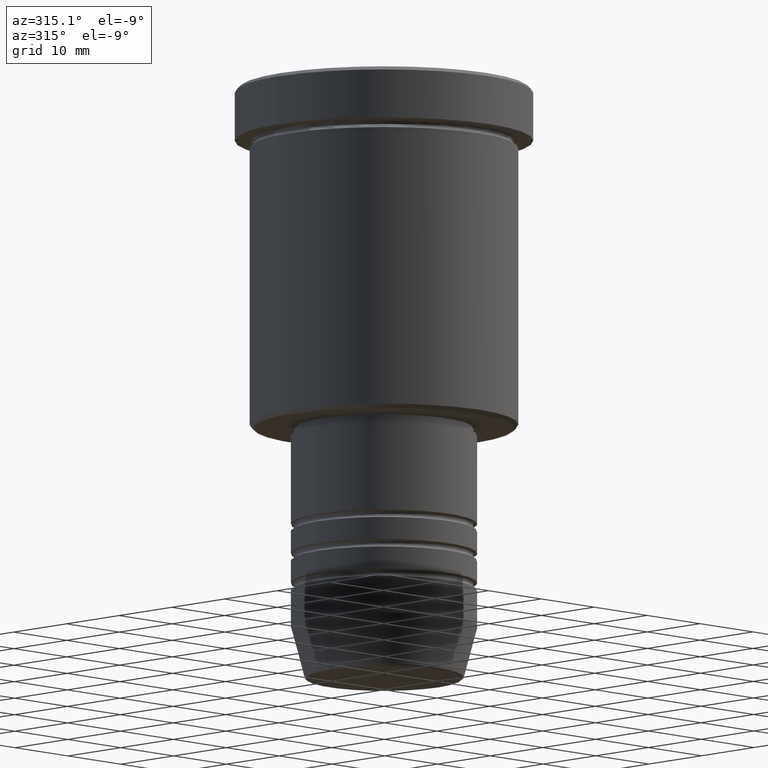
[diagram: clean part render]
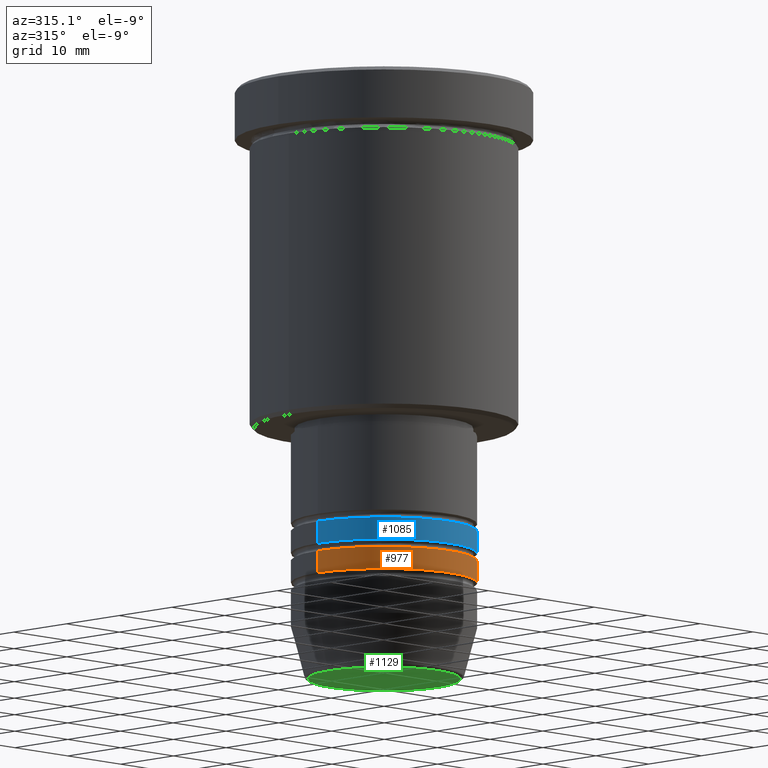
[diagram: same view with three faces highlighted in distinct colors, each labeled with its STEP entity id]
A machine part, auxiliary view with three faces highlighted in distinct colors.
Their STEP definitions:

[orange] entity #977 — the highlighted cylindrical surface (partial cylindrical patch) has radius 12.5 mm, axis along (-0, -0, 1).
#4 = CARTESIAN_POINT ( 'NONE',  ( -12.50000000000000000, 1.530808498934191521E-15, -64.00000000000000000 ) ) ;
#6 = CYLINDRICAL_SURFACE ( 'NONE', #1089, 12.50000000000000000 ) ;
#41 = CIRCLE ( 'NONE', #257, 12.50000000000000000 ) ;
#47 = CARTESIAN_POINT ( 'NONE',  ( 12.50000000000000000, 0.000000000000000000, 0.000000000000000000 ) ) ;
#68 = CARTESIAN_POINT ( 'NONE',  ( -12.50000000000000000, 1.530808498934191521E-15, -67.00000000000000000 ) ) ;
#71 = DIRECTION ( 'NONE',  ( -0.000000000000000000, -0.000000000000000000, 1.000000000000000000 ) ) ;
#75 = DIRECTION ( 'NONE',  ( -0.000000000000000000, -0.000000000000000000, 1.000000000000000000 ) ) ;
#94 = ORIENTED_EDGE ( 'NONE', *, *, #421, .F. ) ;
#113 = VERTEX_POINT ( 'NONE', #68 ) ;
#140 = LINE ( 'NONE', #47, #297 ) ;
#161 = CARTESIAN_POINT ( 'NONE',  ( 0.000000000000000000, 0.000000000000000000, -67.00000000000000000 ) ) ;
#164 = EDGE_CURVE ( 'NONE', #923, #1080, #140, .T. ) ;
#172 = FACE_OUTER_BOUND ( 'NONE', #718, .T. ) ;
#208 = ORIENTED_EDGE ( 'NONE', *, *, #164, .T. ) ;
#218 = DIRECTION ( 'NONE',  ( -0.000000000000000000, -0.000000000000000000, 1.000000000000000000 ) ) ;
#235 = EDGE_CURVE ( 'NONE', #113, #570, #370, .T. ) ;
#257 = AXIS2_PLACEMENT_3D ( 'NONE', #897, #71, #799 ) ;
#260 = CIRCLE ( 'NONE', #729, 12.50000000000000000 ) ;
#297 = VECTOR ( 'NONE', #218, 1000.000000000000000 ) ;
#369 = DIRECTION ( 'NONE',  ( 1.000000000000000000, 0.000000000000000000, 0.000000000000000000 ) ) ;
#370 = LINE ( 'NONE', #1094, #1134 ) ;
#397 = EDGE_CURVE ( 'NONE', #113, #923, #260, .T. ) ;
#421 = EDGE_CURVE ( 'NONE', #570, #1080, #41, .T. ) ;
#570 = VERTEX_POINT ( 'NONE', #4 ) ;
#718 = EDGE_LOOP ( 'NONE', ( #1000, #755, #208, #94 ) ) ;
#729 = AXIS2_PLACEMENT_3D ( 'NONE', #161, #75, #1143 ) ;
#734 = DIRECTION ( 'NONE',  ( -0.000000000000000000, -0.000000000000000000, 1.000000000000000000 ) ) ;
#755 = ORIENTED_EDGE ( 'NONE', *, *, #397, .T. ) ;
#799 = DIRECTION ( 'NONE',  ( 1.000000000000000000, 0.000000000000000000, 0.000000000000000000 ) ) ;
#897 = CARTESIAN_POINT ( 'NONE',  ( 0.000000000000000000, 0.000000000000000000, -64.00000000000000000 ) ) ;
#901 = CARTESIAN_POINT ( 'NONE',  ( 0.000000000000000000, 0.000000000000000000, 0.000000000000000000 ) ) ;
#922 = CARTESIAN_POINT ( 'NONE',  ( 12.50000000000000000, 0.000000000000000000, -67.00000000000000000 ) ) ;
#923 = VERTEX_POINT ( 'NONE', #922 ) ;
#977 = ADVANCED_FACE ( 'NONE', ( #172 ), #6, .T. ) ;
#1000 = ORIENTED_EDGE ( 'NONE', *, *, #235, .F. ) ;
#1033 = CARTESIAN_POINT ( 'NONE',  ( 12.50000000000000000, 0.000000000000000000, -64.00000000000000000 ) ) ;
#1080 = VERTEX_POINT ( 'NONE', #1033 ) ;
#1089 = AXIS2_PLACEMENT_3D ( 'NONE', #901, #734, #369 ) ;
#1094 = CARTESIAN_POINT ( 'NONE',  ( -12.50000000000000000, 1.530808498934191521E-15, 0.000000000000000000 ) ) ;
#1103 = DIRECTION ( 'NONE',  ( -0.000000000000000000, -0.000000000000000000, 1.000000000000000000 ) ) ;
#1134 = VECTOR ( 'NONE', #1103, 1000.000000000000000 ) ;
#1143 = DIRECTION ( 'NONE',  ( 1.000000000000000000, 0.000000000000000000, 0.000000000000000000 ) ) ;

[blue] entity #1085 — the highlighted cylindrical surface (partial cylindrical patch) has radius 12.5 mm, axis along (-0, -0, 1).
#3 = VECTOR ( 'NONE', #520, 1000.000000000000000 ) ;
#17 = EDGE_CURVE ( 'NONE', #91, #816, #392, .T. ) ;
#34 = FACE_OUTER_BOUND ( 'NONE', #366, .T. ) ;
#42 = CARTESIAN_POINT ( 'NONE',  ( 0.000000000000000000, 0.000000000000000000, -60.00000000000000711 ) ) ;
#56 = DIRECTION ( 'NONE',  ( -0.000000000000000000, -0.000000000000000000, 1.000000000000000000 ) ) ;
#91 = VERTEX_POINT ( 'NONE', #587 ) ;
#97 = AXIS2_PLACEMENT_3D ( 'NONE', #42, #500, #1126 ) ;
#209 = DIRECTION ( 'NONE',  ( 1.000000000000000000, 0.000000000000000000, 0.000000000000000000 ) ) ;
#242 = CARTESIAN_POINT ( 'NONE',  ( -12.50000000000000178, 1.530808498934191719E-15, 0.000000000000000000 ) ) ;
#268 = ORIENTED_EDGE ( 'NONE', *, *, #17, .T. ) ;
#319 = DIRECTION ( 'NONE',  ( -0.000000000000000000, -0.000000000000000000, 1.000000000000000000 ) ) ;
#344 = EDGE_CURVE ( 'NONE', #91, #1105, #349, .T. ) ;
#349 = LINE ( 'NONE', #242, #3 ) ;
#366 = EDGE_LOOP ( 'NONE', ( #744, #268, #368, #936 ) ) ;
#368 = ORIENTED_EDGE ( 'NONE', *, *, #800, .T. ) ;
#392 = CIRCLE ( 'NONE', #509, 12.50000000000000355 ) ;
#439 = CARTESIAN_POINT ( 'NONE',  ( 12.50000000000000178, 0.000000000000000000, 0.000000000000000000 ) ) ;
#460 = CARTESIAN_POINT ( 'NONE',  ( 0.000000000000000000, 0.000000000000000000, -63.00000000000000000 ) ) ;
#463 = CIRCLE ( 'NONE', #97, 12.50000000000000000 ) ;
#500 = DIRECTION ( 'NONE',  ( -0.000000000000000000, -0.000000000000000000, 1.000000000000000000 ) ) ;
#509 = AXIS2_PLACEMENT_3D ( 'NONE', #460, #319, #680 ) ;
#520 = DIRECTION ( 'NONE',  ( -0.000000000000000000, -0.000000000000000000, 1.000000000000000000 ) ) ;
#576 = CARTESIAN_POINT ( 'NONE',  ( 12.50000000000000000, 0.000000000000000000, -60.00000000000000711 ) ) ;
#587 = CARTESIAN_POINT ( 'NONE',  ( -12.50000000000000533, 1.530808498934192113E-15, -63.00000000000000000 ) ) ;
#647 = EDGE_CURVE ( 'NONE', #1105, #1063, #463, .T. ) ;
#680 = DIRECTION ( 'NONE',  ( 1.000000000000000000, 0.000000000000000000, 0.000000000000000000 ) ) ;
#744 = ORIENTED_EDGE ( 'NONE', *, *, #344, .F. ) ;
#800 = EDGE_CURVE ( 'NONE', #816, #1063, #980, .T. ) ;
#816 = VERTEX_POINT ( 'NONE', #1164 ) ;
#935 = DIRECTION ( 'NONE',  ( -0.000000000000000000, -0.000000000000000000, 1.000000000000000000 ) ) ;
#936 = ORIENTED_EDGE ( 'NONE', *, *, #647, .F. ) ;
#951 = CYLINDRICAL_SURFACE ( 'NONE', #1153, 12.50000000000000178 ) ;
#980 = LINE ( 'NONE', #439, #1035 ) ;
#1022 = CARTESIAN_POINT ( 'NONE',  ( -12.50000000000000000, 1.530808498934191719E-15, -60.00000000000000711 ) ) ;
#1035 = VECTOR ( 'NONE', #56, 1000.000000000000000 ) ;
#1063 = VERTEX_POINT ( 'NONE', #576 ) ;
#1085 = ADVANCED_FACE ( 'NONE', ( #34 ), #951, .T. ) ;
#1105 = VERTEX_POINT ( 'NONE', #1022 ) ;
#1109 = CARTESIAN_POINT ( 'NONE',  ( 0.000000000000000000, 0.000000000000000000, 0.000000000000000000 ) ) ;
#1126 = DIRECTION ( 'NONE',  ( 1.000000000000000000, 0.000000000000000000, 0.000000000000000000 ) ) ;
#1153 = AXIS2_PLACEMENT_3D ( 'NONE', #1109, #935, #209 ) ;
#1164 = CARTESIAN_POINT ( 'NONE',  ( 12.50000000000000355, 0.000000000000000000, -63.00000000000000000 ) ) ;

[green] entity #1129 — the highlighted planar face has unit normal (0, -0, 1).
#8 = DIRECTION ( 'NONE',  ( 1.000000000000000000, 0.000000000000000000, 0.000000000000000000 ) ) ;
#83 = CIRCLE ( 'NONE', #911, 10.24069215899265828 ) ;
#137 = PLANE ( 'NONE',  #637 ) ;
#202 = VERTEX_POINT ( 'NONE', #584 ) ;
#221 = CIRCLE ( 'NONE', #711, 10.24069215899265828 ) ;
#299 = CARTESIAN_POINT ( 'NONE',  ( 0.000000000000000000, 0.000000000000000000, -80.00000000000000000 ) ) ;
#306 = EDGE_CURVE ( 'NONE', #202, #451, #83, .T. ) ;
#451 = VERTEX_POINT ( 'NONE', #605 ) ;
#512 = ORIENTED_EDGE ( 'NONE', *, *, #306, .T. ) ;
#569 = DIRECTION ( 'NONE',  ( 1.000000000000000000, 0.000000000000000000, 0.000000000000000000 ) ) ;
#584 = CARTESIAN_POINT ( 'NONE',  ( -10.24069215899265828, 1.283696036640842573E-15, -80.00000000000000000 ) ) ;
#605 = CARTESIAN_POINT ( 'NONE',  ( 10.24069215899265828, 0.000000000000000000, -80.00000000000000000 ) ) ;
#637 = AXIS2_PLACEMENT_3D ( 'NONE', #299, #754, #569 ) ;
#663 = FACE_OUTER_BOUND ( 'NONE', #991, .T. ) ;
#666 = DIRECTION ( 'NONE',  ( 0.000000000000000000, 0.000000000000000000, -1.000000000000000000 ) ) ;
#711 = AXIS2_PLACEMENT_3D ( 'NONE', #826, #1179, #715 ) ;
#715 = DIRECTION ( 'NONE',  ( 1.000000000000000000, 0.000000000000000000, 0.000000000000000000 ) ) ;
#754 = DIRECTION ( 'NONE',  ( 0.000000000000000000, -0.000000000000000000, 1.000000000000000000 ) ) ;
#826 = CARTESIAN_POINT ( 'NONE',  ( 0.000000000000000000, 0.000000000000000000, -80.00000000000000000 ) ) ;
#854 = ORIENTED_EDGE ( 'NONE', *, *, #1008, .T. ) ;
#911 = AXIS2_PLACEMENT_3D ( 'NONE', #933, #666, #8 ) ;
#933 = CARTESIAN_POINT ( 'NONE',  ( 0.000000000000000000, 0.000000000000000000, -80.00000000000000000 ) ) ;
#991 = EDGE_LOOP ( 'NONE', ( #854, #512 ) ) ;
#1008 = EDGE_CURVE ( 'NONE', #451, #202, #221, .T. ) ;
#1129 = ADVANCED_FACE ( 'NONE', ( #663 ), #137, .F. ) ;
#1179 = DIRECTION ( 'NONE',  ( 0.000000000000000000, 0.000000000000000000, -1.000000000000000000 ) ) ;